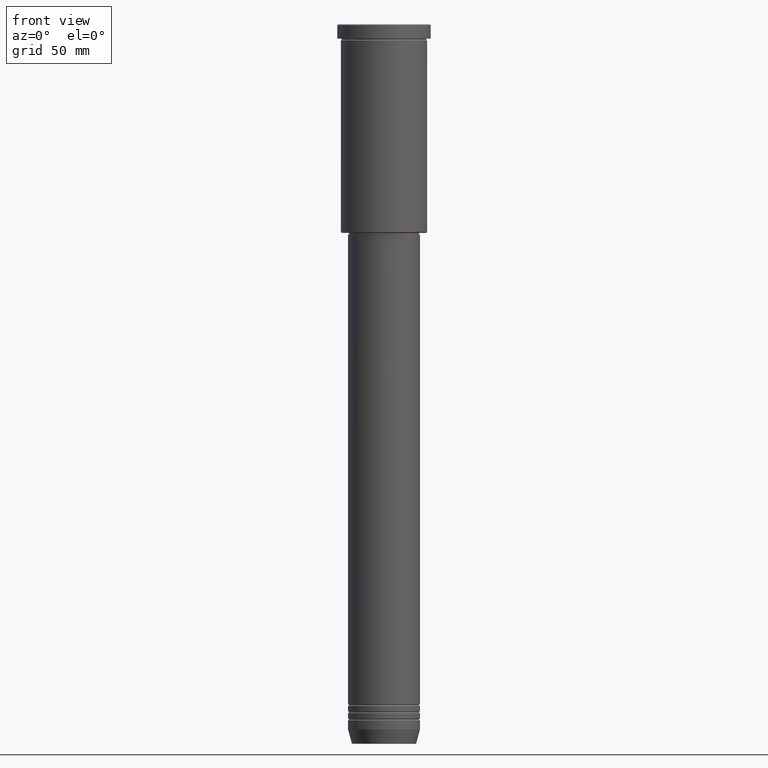
[diagram: clean part render]
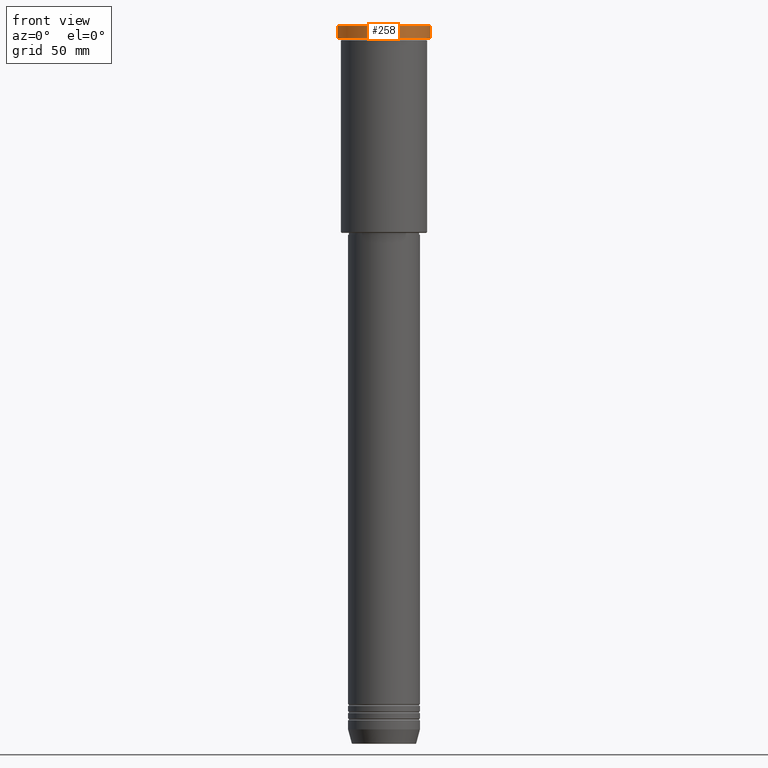
[diagram: same view with one face highlighted and labeled with its STEP entity id]
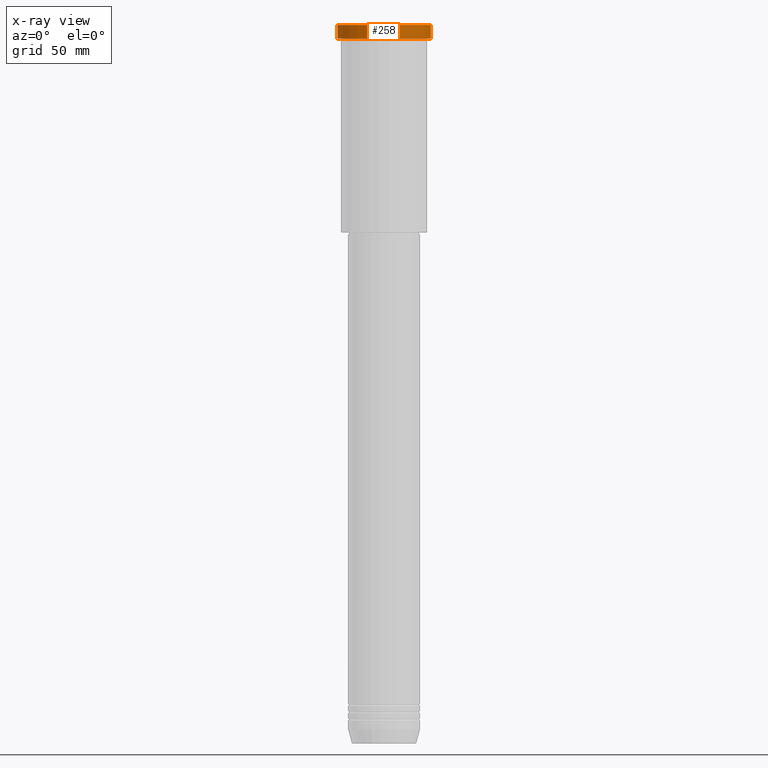
[diagram: x-ray of the same camera — body ghosted, the highlighted face saturated]
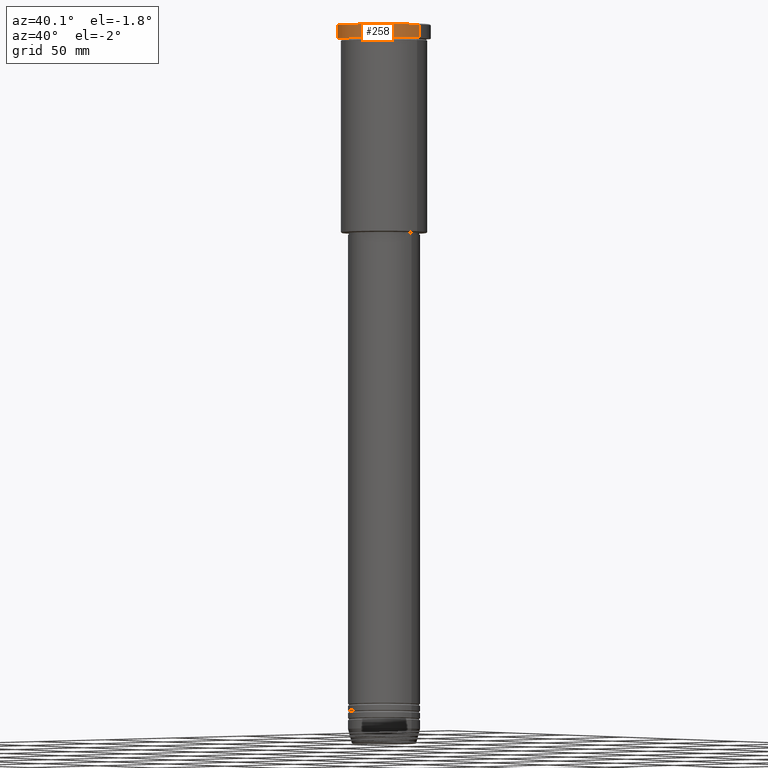
[diagram: same view with one face highlighted and labeled with its STEP entity id]
A machine part, front view. The second image highlights one B-rep face of the part: STEP entity #258.
The next image is the same camera in x-ray: the body ghosted, the highlighted face saturated — about 0% of this face is hidden behind the body in this view.
A second angle (auxiliary view) of the same face is appended — the face is thin or edge-on in the first view.
In plain terms, the highlighted cylindrical surface (partial cylindrical patch) has radius 26 mm, axis along (-0, -0, 1).
Its self-contained STEP definition (entity closure, byte-faithful):
#2 = CIRCLE ( 'NONE', #789, 26.00000000000000000 ) ;
#13 = VERTEX_POINT ( 'NONE', #107 ) ;
#40 = CARTESIAN_POINT ( 'NONE',  ( 0.000000000000000000, 0.000000000000000000, -0.4999999999999692468 ) ) ;
#51 = DIRECTION ( 'NONE',  ( -0.000000000000000000, -0.000000000000000000, 1.000000000000000000 ) ) ;
#54 = DIRECTION ( 'NONE',  ( -0.000000000000000000, -0.000000000000000000, 1.000000000000000000 ) ) ;
#82 = EDGE_LOOP ( 'NONE', ( #643, #310, #1109, #242 ) ) ;
#95 = AXIS2_PLACEMENT_3D ( 'NONE', #40, #766, #305 ) ;
#107 = CARTESIAN_POINT ( 'NONE',  ( -26.00000000000000000, 3.184081677783118191E-15, -0.4999999999999692468 ) ) ;
#234 = LINE ( 'NONE', #605, #249 ) ;
#242 = ORIENTED_EDGE ( 'NONE', *, *, #841, .T. ) ;
#249 = VECTOR ( 'NONE', #51, 1000.000000000000000 ) ;
#258 = ADVANCED_FACE ( 'NONE', ( #592 ), #794, .T. ) ;
#284 = VERTEX_POINT ( 'NONE', #715 ) ;
#305 = DIRECTION ( 'NONE',  ( 1.000000000000000000, 0.000000000000000000, 0.000000000000000000 ) ) ;
#310 = ORIENTED_EDGE ( 'NONE', *, *, #337, .T. ) ;
#314 = DIRECTION ( 'NONE',  ( -0.000000000000000000, -0.000000000000000000, 1.000000000000000000 ) ) ;
#337 = EDGE_CURVE ( 'NONE', #1168, #284, #2, .T. ) ;
#472 = CARTESIAN_POINT ( 'NONE',  ( -26.00000000000000000, 3.184081677783118191E-15, -7.999999999999992895 ) ) ;
#513 = DIRECTION ( 'NONE',  ( -0.000000000000000000, -0.000000000000000000, 1.000000000000000000 ) ) ;
#548 = EDGE_CURVE ( 'NONE', #1168, #13, #234, .T. ) ;
#564 = AXIS2_PLACEMENT_3D ( 'NONE', #725, #513, #1165 ) ;
#592 = FACE_OUTER_BOUND ( 'NONE', #82, .T. ) ;
#605 = CARTESIAN_POINT ( 'NONE',  ( -26.00000000000000000, 3.184081677783118191E-15, 0.000000000000000000 ) ) ;
#643 = ORIENTED_EDGE ( 'NONE', *, *, #548, .F. ) ;
#715 = CARTESIAN_POINT ( 'NONE',  ( 26.00000000000000000, 0.000000000000000000, -7.999999999999992895 ) ) ;
#725 = CARTESIAN_POINT ( 'NONE',  ( 0.000000000000000000, 0.000000000000000000, 0.000000000000000000 ) ) ;
#750 = EDGE_CURVE ( 'NONE', #284, #918, #769, .T. ) ;
#766 = DIRECTION ( 'NONE',  ( 0.000000000000000000, 0.000000000000000000, -1.000000000000000000 ) ) ;
#769 = LINE ( 'NONE', #1135, #999 ) ;
#789 = AXIS2_PLACEMENT_3D ( 'NONE', #894, #54, #1065 ) ;
#794 = CYLINDRICAL_SURFACE ( 'NONE', #564, 26.00000000000000000 ) ;
#841 = EDGE_CURVE ( 'NONE', #918, #13, #1023, .T. ) ;
#894 = CARTESIAN_POINT ( 'NONE',  ( 0.000000000000000000, 0.000000000000000000, -7.999999999999992895 ) ) ;
#918 = VERTEX_POINT ( 'NONE', #963 ) ;
#963 = CARTESIAN_POINT ( 'NONE',  ( 26.00000000000000000, 0.000000000000000000, -0.4999999999999692468 ) ) ;
#999 = VECTOR ( 'NONE', #314, 1000.000000000000000 ) ;
#1023 = CIRCLE ( 'NONE', #95, 26.00000000000000000 ) ;
#1065 = DIRECTION ( 'NONE',  ( 1.000000000000000000, 0.000000000000000000, 0.000000000000000000 ) ) ;
#1109 = ORIENTED_EDGE ( 'NONE', *, *, #750, .T. ) ;
#1135 = CARTESIAN_POINT ( 'NONE',  ( 26.00000000000000000, 0.000000000000000000, 0.000000000000000000 ) ) ;
#1165 = DIRECTION ( 'NONE',  ( 1.000000000000000000, 0.000000000000000000, 0.000000000000000000 ) ) ;
#1168 = VERTEX_POINT ( 'NONE', #472 ) ;